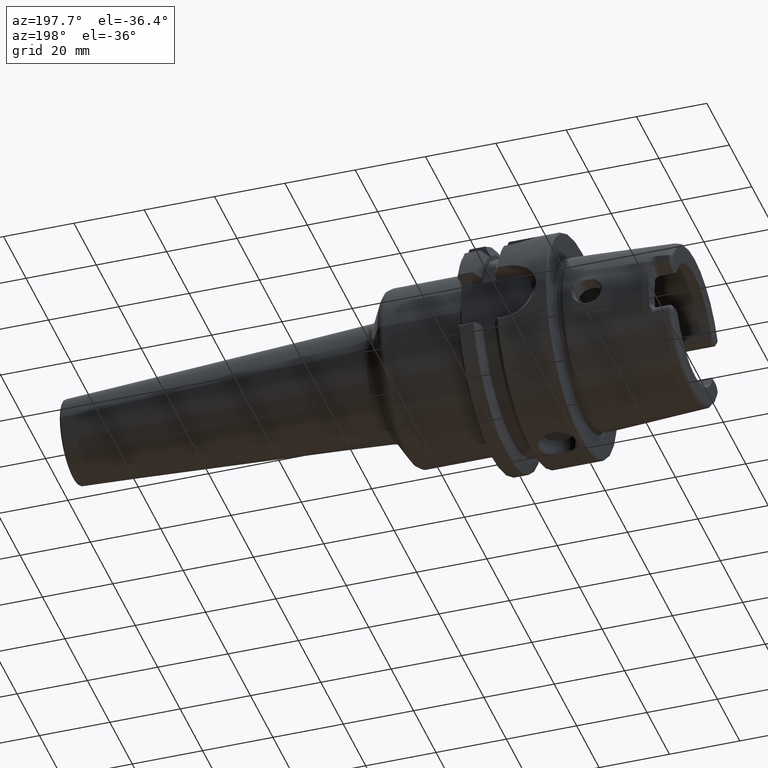
[diagram: clean part render]
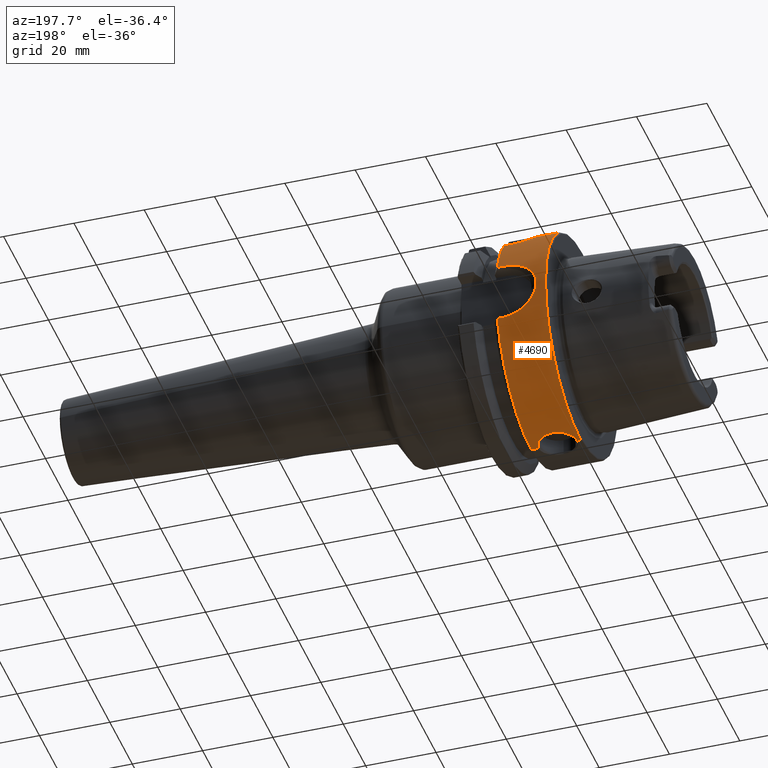
[diagram: same view with one face highlighted and labeled with its STEP entity id]
A machine part, auxiliary view. The second image highlights one B-rep face of the part: STEP entity #4690.
In plain terms, the highlighted cylindrical surface (partial cylindrical patch) has radius 31.5 mm, axis along (1, 0, 0).
Its self-contained STEP definition (entity closure, byte-faithful):
#1316=DIRECTION('',(-1.E0,-1.152697855394E-12,0.E0));
#1317=VECTOR('',#1316,1.412250090457E1);
#1318=CARTESIAN_POINT('',(1.462250090457E1,0.E0,3.15E1));
#1319=LINE('',#1318,#1317);
#1375=DIRECTION('',(-1.E0,0.E0,0.E0));
#1376=VECTOR('',#1375,2.122500904567E0);
#1377=CARTESIAN_POINT('',(1.462250090457E1,0.E0,-3.15E1));
#1378=LINE('',#1377,#1376);
#1399=DIRECTION('',(-1.E0,-3.500326402276E-12,0.E0));
#1400=VECTOR('',#1399,1.E0);
#1401=CARTESIAN_POINT('',(1.5E0,0.E0,-3.15E1));
#1402=LINE('',#1401,#1400);
#1530=CARTESIAN_POINT('',(5.E-1,0.E0,0.E0));
#1531=DIRECTION('',(-1.E0,0.E0,0.E0));
#1532=DIRECTION('',(0.E0,0.E0,1.E0));
#1533=AXIS2_PLACEMENT_3D('',#1530,#1531,#1532);
#1535=CARTESIAN_POINT('',(1.25E1,0.E0,-3.15E1));
#1536=CARTESIAN_POINT('',(1.25E1,3.591179016958E-1,-3.15E1));
#1537=CARTESIAN_POINT('',(1.241877060514E1,1.049176716839E0,-3.148780969961E1));
#1538=CARTESIAN_POINT('',(1.208888151745E1,2.007789554012E0,-3.144033464909E1));
#1539=CARTESIAN_POINT('',(1.158303499725E1,2.863034778919E0,-3.137310892711E1));
#1540=CARTESIAN_POINT('',(1.090471174494E1,3.623449915998E0,-3.129357789396E1));
#1541=CARTESIAN_POINT('',(1.006459553458E1,4.261252464667E0,-3.121215533395E1));
#1542=CARTESIAN_POINT('',(9.088026015445E0,4.740243014212E0,-3.114207085875E1));
#1543=CARTESIAN_POINT('',(8.055144265708E0,5.024239826024E0,-3.109689332850E1));
#1544=CARTESIAN_POINT('',(6.991255526220E0,5.118492193282E0,-3.108133183436E1));
#1545=CARTESIAN_POINT('',(5.929304176130E0,5.021338939589E0,-3.109736870211E1));
#1546=CARTESIAN_POINT('',(4.897654838810E0,4.734729497616E0,-3.114291627253E1));
#1547=CARTESIAN_POINT('',(3.923322314250E0,4.253904907756E0,-3.121317796639E1));
#1548=CARTESIAN_POINT('',(3.081999010349E0,3.611475324829E0,-3.129499592086E1));
#1549=CARTESIAN_POINT('',(2.405524185626E0,2.847462453288E0,-3.137455446046E1));
#1550=CARTESIAN_POINT('',(1.903178736620E0,1.990202842849E0,-3.144144823364E1));
#1551=CARTESIAN_POINT('',(1.578888425808E0,1.035924841317E0,-3.148816306394E1));
#1552=CARTESIAN_POINT('',(1.5E0,3.538898695661E-1,-3.15E1));
#1553=CARTESIAN_POINT('',(1.5E0,0.E0,-3.15E1));
#1555=CARTESIAN_POINT('',(1.462250090457E1,0.E0,0.E0));
#1556=DIRECTION('',(1.E0,0.E0,0.E0));
#1557=DIRECTION('',(0.E0,0.E0,-1.E0));
#1558=AXIS2_PLACEMENT_3D('',#1555,#1556,#1557);
#1560=DIRECTION('',(1.E0,0.E0,0.E0));
#1561=VECTOR('',#1560,1.622500904567E0);
#1562=CARTESIAN_POINT('',(1.3E1,3.030257052423E1,-8.602570524226E0));
#1563=LINE('',#1562,#1561);
#1564=CARTESIAN_POINT('',(1.3E1,3.030257052423E1,-8.602570524226E0));
#1565=CARTESIAN_POINT('',(1.235541835287E1,3.030257052423E1,-8.602570524226E0));
#1566=CARTESIAN_POINT('',(1.109372968304E1,3.033423153458E1,-8.492196080456E0));
#1567=CARTESIAN_POINT('',(9.248264611222E0,3.046933517118E1,-8.000909647176E0));
#1568=CARTESIAN_POINT('',(7.555884268441E0,3.066964465669E1,-7.205952655409E0));
#1569=CARTESIAN_POINT('',(6.088763746981E0,3.090017764345E1,-6.155508171550E0));
#1570=CARTESIAN_POINT('',(4.907613818030E0,3.112281076593E1,-4.919449967846E0));
#1571=CARTESIAN_POINT('',(4.035296228860E0,3.130752418742E1,-3.569140413675E0));
#1572=CARTESIAN_POINT('',(3.467126615443E0,3.143679507039E1,-2.158791178254E0));
#1573=CARTESIAN_POINT('',(3.188348549717E0,3.150274417315E1,
-7.219689524247E-1));
#1574=CARTESIAN_POINT('',(3.188351309952E0,3.150274350794E1,7.219960352426E-1));
#1575=CARTESIAN_POINT('',(3.467133324851E0,3.143679352027E1,2.158810680109E0));
#1576=CARTESIAN_POINT('',(4.035299491244E0,3.130752347964E1,3.569145798460E0));
#1577=CARTESIAN_POINT('',(4.907619317801E0,3.112280964165E1,4.919457341111E0));
#1578=CARTESIAN_POINT('',(6.088770538561E0,3.090017648968E1,6.155513669787E0));
#1579=CARTESIAN_POINT('',(7.555887404237E0,3.066964426780E1,7.205954206590E0));
#1580=CARTESIAN_POINT('',(9.248266760131E0,3.046933495101E1,8.000910488809E0));
#1581=CARTESIAN_POINT('',(1.109373293521E1,3.033423138205E1,8.492196614850E0));
#1582=CARTESIAN_POINT('',(1.235541965801E1,3.030257052423E1,8.602570524226E0));
#1583=CARTESIAN_POINT('',(1.3E1,3.030257052423E1,8.602570524226E0));
#1585=DIRECTION('',(1.E0,0.E0,0.E0));
#1586=VECTOR('',#1585,1.622500904567E0);
#1587=CARTESIAN_POINT('',(1.3E1,3.030257052423E1,8.602570524226E0));
#1588=LINE('',#1587,#1586);
#1589=CARTESIAN_POINT('',(1.462250090457E1,0.E0,0.E0));
#1590=DIRECTION('',(1.E0,0.E0,0.E0));
#1591=DIRECTION('',(0.E0,9.619863658485E-1,2.730974769596E-1));
#1592=AXIS2_PLACEMENT_3D('',#1589,#1590,#1591);
#1594=DIRECTION('',(1.E0,0.E0,0.E0));
#1595=VECTOR('',#1594,1.622500904567E0);
#1596=CARTESIAN_POINT('',(1.3E1,2.433618704728E1,2.E1));
#1597=LINE('',#1596,#1595);
#1598=CARTESIAN_POINT('',(5.888286096344E0,2.E1,2.433618704728E1));
#1599=CARTESIAN_POINT('',(5.979841110901E0,2.021624479285E1,2.415847244274E1));
#1600=CARTESIAN_POINT('',(6.178964055433E0,2.063505528873E1,2.380463264103E1));
#1601=CARTESIAN_POINT('',(6.529290349012E0,2.122336114799E1,2.328123619400E1));
#1602=CARTESIAN_POINT('',(6.934185786704E0,2.177041926319E1,2.277004743860E1));
#1603=CARTESIAN_POINT('',(7.395470581921E0,2.227363444044E1,2.227755184076E1));
#1604=CARTESIAN_POINT('',(7.915511267172E0,2.273117164906E1,2.180996325233E1));
#1605=CARTESIAN_POINT('',(8.494651142790E0,2.313957745525E1,2.137559509570E1));
#1606=CARTESIAN_POINT('',(9.133373456560E0,2.349590004479E1,2.098269866103E1));
#1607=CARTESIAN_POINT('',(9.827602999986E0,2.379530983774E1,2.064193255373E1));
#1608=CARTESIAN_POINT('',(1.057250362730E1,2.403390563889E1,2.036307977068E1));
#1609=CARTESIAN_POINT('',(1.135757184338E1,2.420737036833E1,2.015610491514E1));
#1610=CARTESIAN_POINT('',(1.217313527813E1,2.431273139834E1,2.002859294578E1));
#1611=CARTESIAN_POINT('',(1.272260838370E1,2.433618704728E1,2.E1));
#1612=CARTESIAN_POINT('',(1.3E1,2.433618704728E1,2.E1));
#1614=DIRECTION('',(1.E0,0.E0,0.E0));
#1615=VECTOR('',#1614,8.734214808223E0);
#1616=CARTESIAN_POINT('',(5.888286096344E0,2.E1,2.433618704728E1));
#1617=LINE('',#1616,#1615);
#1618=CARTESIAN_POINT('',(1.462250090457E1,0.E0,0.E0));
#1619=DIRECTION('',(1.E0,0.E0,0.E0));
#1620=DIRECTION('',(0.E0,6.349206349206E-1,7.725773665802E-1));
#1621=AXIS2_PLACEMENT_3D('',#1618,#1619,#1620);
#2627=CARTESIAN_POINT('',(5.888286096344E0,2.E1,2.433618704728E1));
#2628=CARTESIAN_POINT('',(1.462250090457E1,2.E1,2.433618704728E1));
#2629=VERTEX_POINT('',#2627);
#2630=VERTEX_POINT('',#2628);
#2631=CARTESIAN_POINT('',(1.3E1,2.433618704728E1,2.E1));
#2632=CARTESIAN_POINT('',(1.462250090457E1,2.433618704728E1,2.E1));
#2633=VERTEX_POINT('',#2631);
#2634=VERTEX_POINT('',#2632);
#2647=CARTESIAN_POINT('',(1.462250090457E1,0.E0,3.15E1));
#2648=VERTEX_POINT('',#2647);
#2790=VERTEX_POINT('',#1535);
#2791=VERTEX_POINT('',#1553);
#2800=CARTESIAN_POINT('',(1.462250090457E1,0.E0,-3.15E1));
#2801=VERTEX_POINT('',#2800);
#2847=CARTESIAN_POINT('',(1.3E1,3.030257052423E1,8.602570524226E0));
#2848=CARTESIAN_POINT('',(1.462250090457E1,3.030257052423E1,8.602570524226E0));
#2849=VERTEX_POINT('',#2847);
#2850=VERTEX_POINT('',#2848);
#2851=VERTEX_POINT('',#1564);
#2852=CARTESIAN_POINT('',(1.462250090457E1,3.030257052423E1,-8.602570524226E0));
#2853=VERTEX_POINT('',#2852);
#2872=CARTESIAN_POINT('',(5.E-1,0.E0,3.15E1));
#2873=CARTESIAN_POINT('',(5.E-1,0.E0,-3.15E1));
#2874=VERTEX_POINT('',#2872);
#2875=VERTEX_POINT('',#2873);
#4662=CARTESIAN_POINT('',(0.E0,0.E0,0.E0));
#4663=DIRECTION('',(1.E0,0.E0,0.E0));
#4664=DIRECTION('',(0.E0,0.E0,1.E0));
#4665=AXIS2_PLACEMENT_3D('',#4662,#4663,#4664);
#4666=CYLINDRICAL_SURFACE('',#4665,3.15E1);
#4667=ORIENTED_EDGE('',*,*,#4390,.T.);
#4668=ORIENTED_EDGE('',*,*,#4484,.F.);
#4670=ORIENTED_EDGE('',*,*,#4669,.F.);
#4671=ORIENTED_EDGE('',*,*,#4480,.F.);
#4672=ORIENTED_EDGE('',*,*,#4649,.T.);
#4674=ORIENTED_EDGE('',*,*,#4673,.F.);
#4676=ORIENTED_EDGE('',*,*,#4675,.T.);
#4678=ORIENTED_EDGE('',*,*,#4677,.T.);
#4679=ORIENTED_EDGE('',*,*,#4637,.T.);
#4681=ORIENTED_EDGE('',*,*,#4680,.F.);
#4683=ORIENTED_EDGE('',*,*,#4682,.F.);
#4685=ORIENTED_EDGE('',*,*,#4684,.T.);
#4686=ORIENTED_EDGE('',*,*,#4613,.T.);
#4687=ORIENTED_EDGE('',*,*,#4464,.T.);
#4688=EDGE_LOOP('',(#4667,#4668,#4670,#4671,#4672,#4674,#4676,#4678,#4679,#4681,
#4683,#4685,#4686,#4687));
#4689=FACE_OUTER_BOUND('',#4688,.F.);
#4690=ADVANCED_FACE('',(#4689),#4666,.T.);
#1534=CIRCLE('',#1533,3.15E1);
#1554=B_SPLINE_CURVE_WITH_KNOTS('',3,(#1535,#1536,#1537,#1538,#1539,#1540,#1541,
#1542,#1543,#1544,#1545,#1546,#1547,#1548,#1549,#1550,#1551,#1552,#1553),
.UNSPECIFIED.,.F.,.F.,(4,1,1,1,1,1,1,1,1,1,1,1,1,1,1,1,4),(0.E0,6.25E-2,1.25E-1,
1.875E-1,2.5E-1,3.125E-1,3.75E-1,4.375E-1,5.E-1,5.625E-1,6.25E-1,6.875E-1,
7.5E-1,8.125E-1,8.75E-1,9.375E-1,1.E0),.UNSPECIFIED.);
#1559=CIRCLE('',#1558,3.15E1);
#1584=B_SPLINE_CURVE_WITH_KNOTS('',3,(#1564,#1565,#1566,#1567,#1568,#1569,#1570,
#1571,#1572,#1573,#1574,#1575,#1576,#1577,#1578,#1579,#1580,#1581,#1582,#1583),
.UNSPECIFIED.,.F.,.F.,(4,1,1,1,1,1,1,1,1,1,1,1,1,1,1,1,1,4),(0.E0,
5.882352941176E-2,1.176470588235E-1,1.764705882353E-1,2.352941176471E-1,
2.941176470588E-1,3.529411764706E-1,4.117647058824E-1,4.705882352941E-1,
5.294117647059E-1,5.882352941176E-1,6.470588235294E-1,7.058823529412E-1,
7.647058823529E-1,8.235294117647E-1,8.823529411765E-1,9.411764705882E-1,1.E0),
.UNSPECIFIED.);
#1593=CIRCLE('',#1592,3.15E1);
#1613=B_SPLINE_CURVE_WITH_KNOTS('',3,(#1598,#1599,#1600,#1601,#1602,#1603,#1604,
#1605,#1606,#1607,#1608,#1609,#1610,#1611,#1612),.UNSPECIFIED.,.F.,.F.,(4,1,1,1,
1,1,1,1,1,1,1,1,4),(0.E0,8.333333333333E-2,1.666666666667E-1,2.5E-1,
3.333333333333E-1,4.166666666667E-1,5.E-1,5.833333333333E-1,6.666666666667E-1,
7.5E-1,8.333333333333E-1,9.166666666667E-1,1.E0),.UNSPECIFIED.);
#1622=CIRCLE('',#1621,3.15E1);
#4390=EDGE_CURVE('',#2874,#2875,#1534,.T.);
#4464=EDGE_CURVE('',#2648,#2874,#1319,.T.);
#4480=EDGE_CURVE('',#2801,#2790,#1378,.T.);
#4484=EDGE_CURVE('',#2791,#2875,#1402,.T.);
#4613=EDGE_CURVE('',#2630,#2648,#1622,.T.);
#4637=EDGE_CURVE('',#2850,#2634,#1593,.T.);
#4649=EDGE_CURVE('',#2801,#2853,#1559,.T.);
#4669=EDGE_CURVE('',#2790,#2791,#1554,.T.);
#4673=EDGE_CURVE('',#2851,#2853,#1563,.T.);
#4675=EDGE_CURVE('',#2851,#2849,#1584,.T.);
#4677=EDGE_CURVE('',#2849,#2850,#1588,.T.);
#4680=EDGE_CURVE('',#2633,#2634,#1597,.T.);
#4682=EDGE_CURVE('',#2629,#2633,#1613,.T.);
#4684=EDGE_CURVE('',#2629,#2630,#1617,.T.);